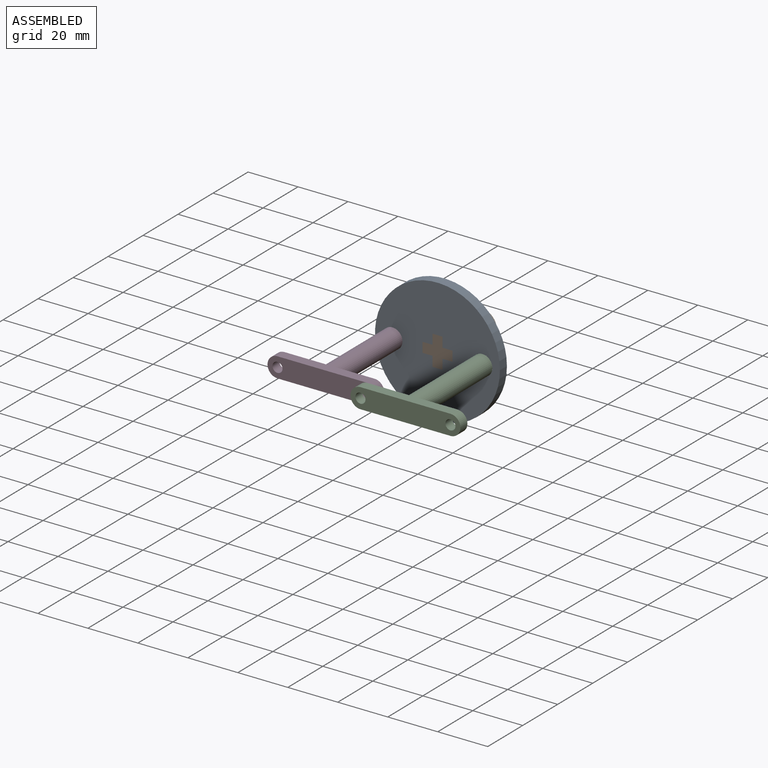
[diagram: assembled view]
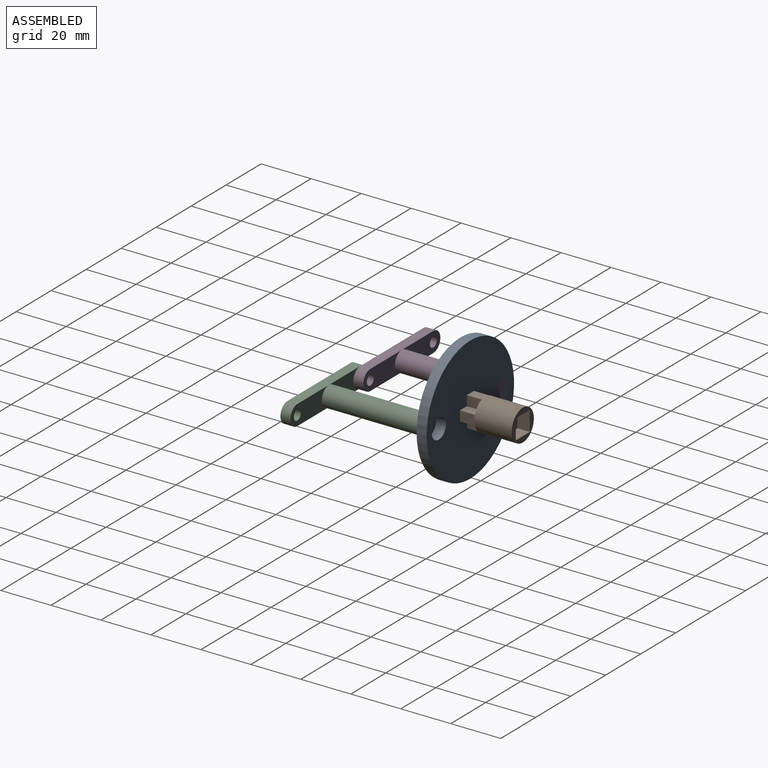
[diagram: assembled view, second angle]
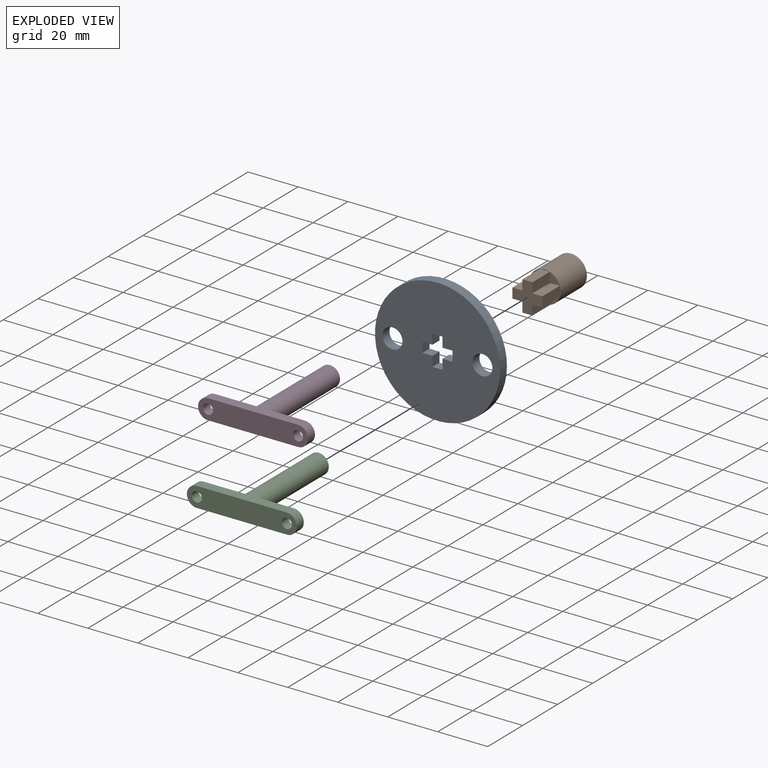
[diagram: exploded view]
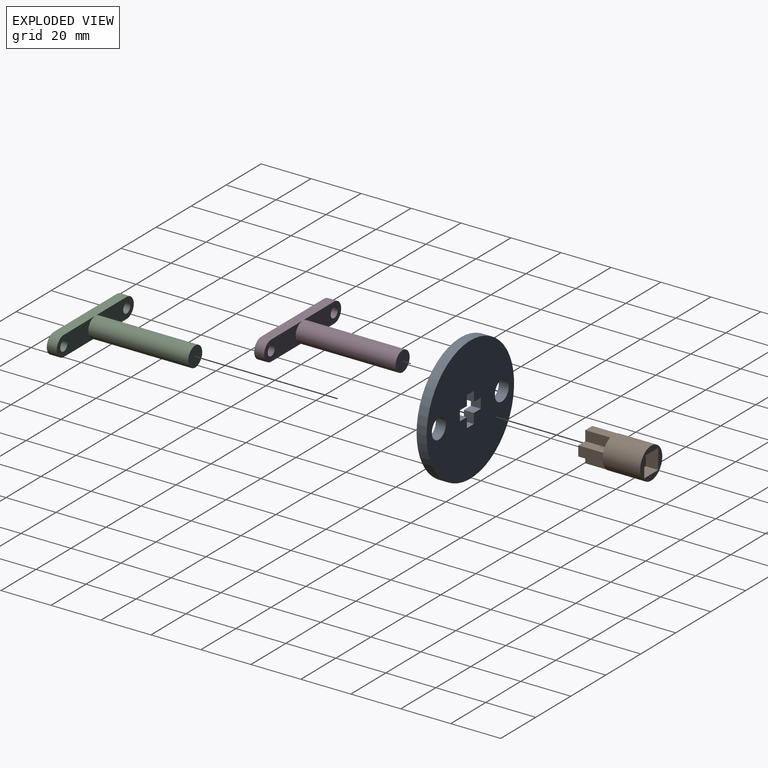
[diagram: exploded view, second angle]
ASSEMBLY  parts=4 mates=3
PART A: 17 faces, bbox 50x50x4 mm
  f0: plane 50x50mm, normal (0,0,1), area 1783mm2, adj f2,f3,f4,f5,f6,f7,f8,f9
  f1: plane 50x50mm, normal (0,0,-1), area 1783mm2, adj f2,f3,f4,f5,f6,f7,f8,f9
  f2: cylinder r=25mm len=50mm, axis (0,0,-1), area 628.3mm2, adj f0,f1
  f3: plane 4x4mm, normal (0,-1,0), area 16mm2, adj f0,f1,f4,f14
  f4: plane 4x4mm, normal (1,0,0), area 16mm2, adj f0,f1,f3,f5
  f5: plane 4x4mm, normal (0,-1,0), area 16mm2, adj f0,f1,f4,f6
  f6: plane 4x4mm, normal (1,0,0), area 16mm2, adj f0,f1,f5,f7
  f7: plane 4x4mm, normal (0,1,0), area 16mm2, adj f0,f1,f6,f8
  f8: plane 4x4mm, normal (1,0,0), area 16mm2, adj f0,f1,f7,f9
  f9: plane 4x4mm, normal (0,1,0), area 16mm2, adj f0,f1,f8,f10
  f10: plane 4x4mm, normal (-1,0,0), area 16mm2, adj f0,f1,f9,f11
  f11: plane 4x4mm, normal (0,1,0), area 16mm2, adj f0,f1,f10,f12
  f12: plane 4x4mm, normal (-1,0,0), area 16mm2, adj f0,f1,f11,f13
  f13: plane 4x4mm, normal (0,-1,0), area 16mm2, adj f0,f1,f12,f14
  f14: plane 4x4mm, normal (-1,0,0), area 16mm2, adj f0,f1,f3,f13
  f15: cylinder r=4mm len=8mm, axis (0,0,1), area 100.5mm2, adj f0,f1
  f16: cylinder r=4mm len=8mm, axis (0,0,1), area 100.5mm2, adj f0,f1
PART B: 28 faces, bbox 12.7x12.7x25 mm
  f0: plane 12.65x12.65mm, normal (0,0,1), area 61.7mm2, adj f21,f23,f24,f25,f26
  f1: plane 10x4mm, normal (0,1,0), area 40mm2, adj f2,f12,f13,f14
  f2: plane 10x4mm, normal (-1,0,0), area 40mm2, adj f1,f3,f13,f15
  f3: plane 10x4mm, normal (0,-1,0), area 40mm2, adj f2,f4,f13,f16
  f4: plane 10x4mm, normal (-1,0,0), area 40mm2, adj f3,f5,f13,f16
  f5: plane 10x4mm, normal (0,-1,0), area 40mm2, adj f4,f6,f13,f22
  f6: plane 10x4mm, normal (1,0,0), area 40mm2, adj f5,f7,f13,f17
  f7: plane 10x4mm, normal (0,-1,0), area 40mm2, adj f6,f8,f13,f17
  f8: plane 10x4mm, normal (1,0,0), area 40mm2, adj f7,f9,f13,f18
  f9: plane 10x4mm, normal (0,1,0), area 40mm2, adj f8,f10,f13,f19
  f10: plane 10x4mm, normal (1,0,0), area 40mm2, adj f9,f11,f13,f19
  f11: plane 10x4mm, normal (0,1,0), area 40mm2, adj f10,f12,f13,f20
  f12: plane 10x4mm, normal (-1,0,0), area 40mm2, adj f1,f11,f13,f14
  f13: plane 12x12mm, normal (0,0,-1), area 80mm2, adj f1,f2,f3,f4,f5,f6,f7,f8
  f14: plane 4x4mm, normal (0,0,-1), area 10.5mm2, adj f1,f12,f21
  f15: plane 4x0.33mm, normal (0,0,-1), area 0.9mm2, adj f2,f21
  f16: plane 4x4mm, normal (0,0,-1), area 10.5mm2, adj f3,f4,f21
  f17: plane 4x4mm, normal (0,0,-1), area 10.5mm2, adj f6,f7,f21
  f18: plane 4x0.33mm, normal (0,0,-1), area 0.9mm2, adj f8,f21
  f19: plane 4x4mm, normal (0,0,-1), area 10.5mm2, adj f9,f10,f21
  f20: plane 4x0.33mm, normal (0,0,-1), area 0.9mm2, adj f11,f21
  f21: cylinder r=6.33mm len=15mm, axis (0,0,-1), area 596.1mm2, adj f0,f14,f15,f16,f17,f18,f19,f20
  f22: plane 4x0.33mm, normal (0,0,-1), area 0.9mm2, adj f5,f21
  f23: plane 8x5mm, normal (0,-1,0), area 40mm2, adj f0,f24,f26,f27
  f24: plane 8x5mm, normal (1,0,0), area 40mm2, adj f0,f23,f25,f27
  f25: plane 8x5mm, normal (0,1,0), area 40mm2, adj f0,f24,f26,f27
  f26: plane 8x5mm, normal (-1,0,0), area 40mm2, adj f0,f23,f25,f27
  f27: plane 8x8mm, normal (0,0,1), area 64mm2, adj f23,f24,f25,f26
PART C: 11 faces, bbox 44x44x8 mm
  f0: cylinder r=4mm len=40mm, axis (0,1,0), area 1005.3mm2, adj f1,f2,f3
  f1: plane 8x8mm, normal (0,1,0), area 50.3mm2, adj f0
  f2: plane 22x8mm, normal (0,1,0), area 131.4mm2, adj f0,f4,f5,f6,f9
  f3: plane 22x8mm, normal (0,1,0), area 131.4mm2, adj f0,f4,f6,f7,f10
  f4: plane 36x4mm, normal (0,0,-1), area 144mm2, adj f2,f3,f5,f7,f8
  f5: cylinder r=4mm len=8mm, axis (0,1,0), area 50.3mm2, adj f2,f4,f6,f8
  f6: plane 36x4mm, normal (0,0,1), area 144mm2, adj f2,f3,f5,f7,f8
  f7: cylinder r=4mm len=8mm, axis (0,1,0), area 50.3mm2, adj f3,f4,f6,f8
  f8: plane 44x8mm, normal (0,-1,0), area 313.1mm2, adj f4,f5,f6,f7,f9,f10
  f9: cylinder r=2mm len=4mm, axis (0,-1,0), area 50.3mm2, adj f2,f8
  f10: cylinder r=2mm len=4mm, axis (0,-1,0), area 50.3mm2, adj f3,f8
PART D: same geometry as C
PLACE A rot(axis=(-1,0,0),90deg) t=(-76.25,14.43,15.8)mm
PLACE B rot(axis=(-1,0,0),90deg) t=(-76.25,14.43,15.8)mm
PLACE C t=(-58.25,14.43,15.8)mm
PLACE D t=(-94.25,18.43,15.8)mm
MATE fastened C.f0 <-> A.f15  axis (0,1,0) through (-58.25,14.43,15.8)mm
MATE fastened A.f16 <-> D.f0  axis (0,1,0) through (-94.25,18.43,15.8)mm
MATE fastened B.f21 <-> A.f2  axis (0,-1,0) through (-76.25,14.43,15.8)mm
